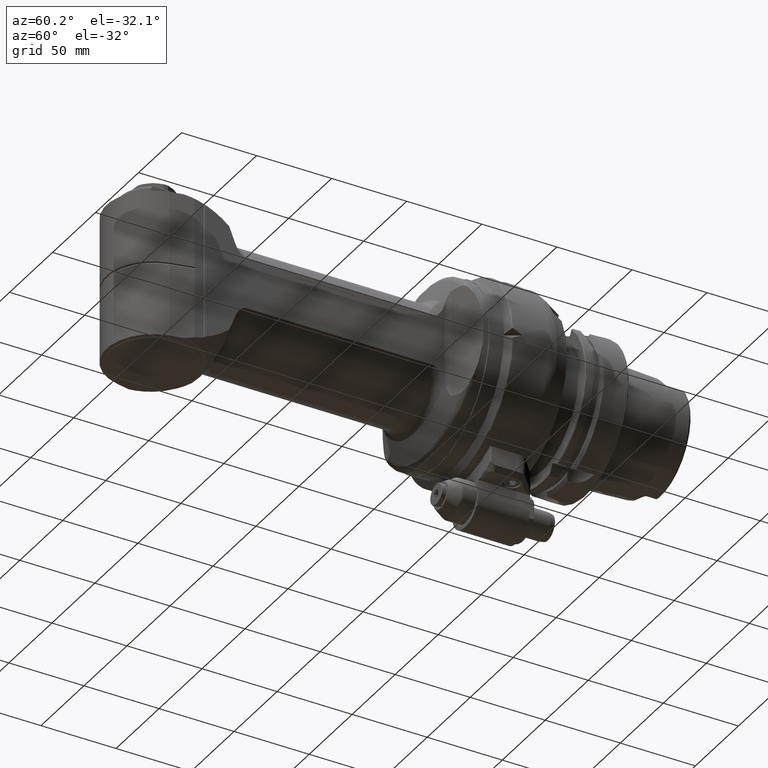
[diagram: clean part render]
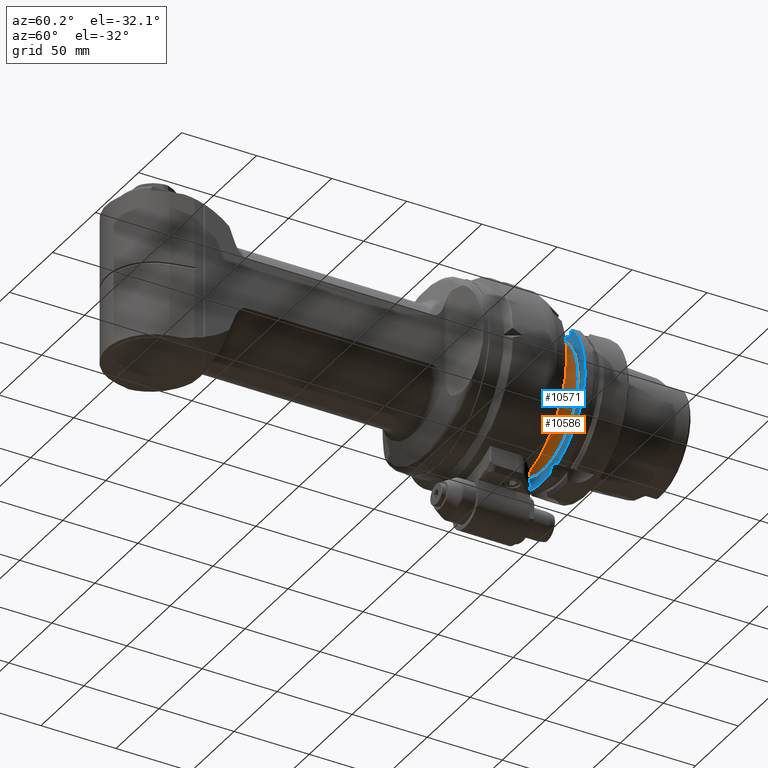
[diagram: same view with the hole feature highlighted: cylindrical wall and planar end face, labeled with their STEP entity ids]
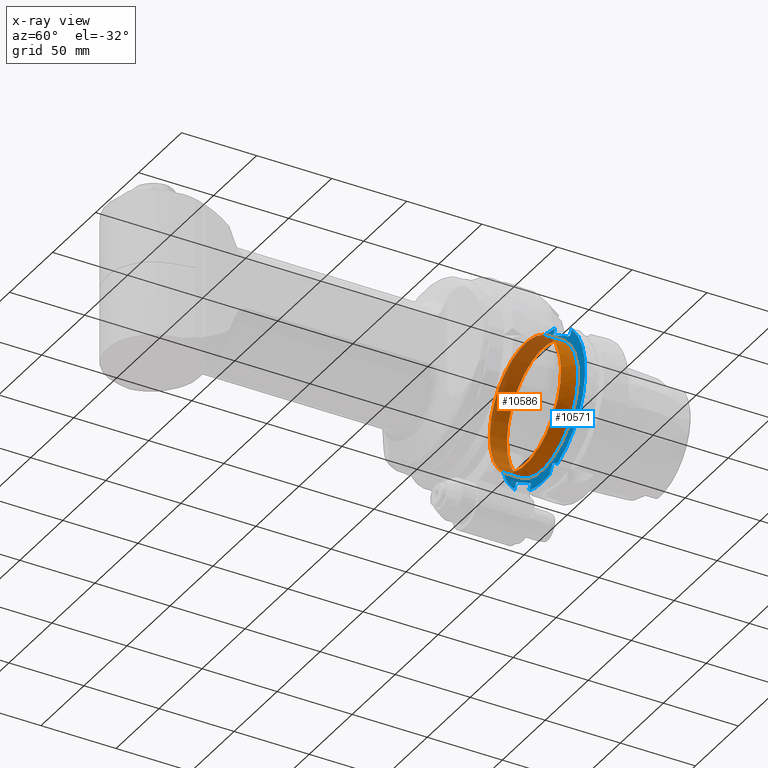
[diagram: x-ray of the same camera — body ghosted, the hole faces saturated]
A machine part, auxiliary view. The highlighted faces form one hole feature of diameter 83 mm: the cylindrical wall (entity #10586, orange) and its adjacent planar end face (entity #10571, blue) — they share a circular edge in the B-rep.
The next image is the same camera in x-ray (body ghosted, the hole faces saturated) — the bore reads through the body.
Wall:
#474=CYLINDRICAL_SURFACE('',#11590,41.5);
#996=CIRCLE('',#11566,41.5);
#1006=CIRCLE('',#11591,41.5);
#1007=CIRCLE('',#11592,41.5);
#1600=FACE_OUTER_BOUND('',#2280,.T.);
#2280=EDGE_LOOP('',(#8598,#8599,#8600,#8601,#8602));
#3203=LINE('',#32179,#3870);
#3870=VECTOR('',#13875,41.5);
#4731=VERTEX_POINT('',#32134);
#4737=VERTEX_POINT('',#32175);
#4738=VERTEX_POINT('',#32176);
#6083=EDGE_CURVE('',#4731,#4731,#996,.T.);
#6101=EDGE_CURVE('',#4737,#4738,#1006,.T.);
#6102=EDGE_CURVE('',#4738,#4737,#1007,.T.);
#6103=EDGE_CURVE('',#4738,#4731,#3203,.T.);
#8598=ORIENTED_EDGE('',*,*,#6101,.F.);
#8599=ORIENTED_EDGE('',*,*,#6102,.F.);
#8600=ORIENTED_EDGE('',*,*,#6103,.T.);
#8601=ORIENTED_EDGE('',*,*,#6083,.F.);
#8602=ORIENTED_EDGE('',*,*,#6103,.F.);
#10586=ADVANCED_FACE('',(#1600),#474,.T.);
#11566=AXIS2_PLACEMENT_3D('',#32135,#13814,#13815);
#11590=AXIS2_PLACEMENT_3D('',#32174,#13869,#13870);
#11591=AXIS2_PLACEMENT_3D('',#32177,#13871,#13872);
#11592=AXIS2_PLACEMENT_3D('',#32178,#13873,#13874);
#13814=DIRECTION('center_axis',(-1.53664867371285E-13,1.,8.88939656489896E-14));
#13815=DIRECTION('ref_axis',(-0.866025403784429,-1.77524661637194E-13,0.500000000000017));
#13869=DIRECTION('center_axis',(1.53664867371285E-13,-1.,-8.88939656489896E-14));
#13870=DIRECTION('ref_axis',(0.866025403784429,1.77524661637194E-13,-0.500000000000017));
#13871=DIRECTION('center_axis',(1.53664867371285E-13,-1.,-8.88939656489896E-14));
#13872=DIRECTION('ref_axis',(-0.500000000000017,1.5199880952032E-16,-0.866025403784429));
#13873=DIRECTION('center_axis',(1.53664867371285E-13,-1.,-8.88939656489896E-14));
#13874=DIRECTION('ref_axis',(-0.500000000000017,1.5199880952032E-16,-0.866025403784429));
#13875=DIRECTION('',(-1.53664867371285E-13,1.,8.88939656489896E-14));
#32134=CARTESIAN_POINT('',(-35.9400542570549,59.4999997692226,20.7500000000013));
#32135=CARTESIAN_POINT('Origin',(-1.04853280603831E-12,59.49999976923,6.02211481207787E-13));
#32174=CARTESIAN_POINT('Origin',(-3.6117079169731E-15,52.69999976922,-2.26748520974844E-15));
#32175=CARTESIAN_POINT('',(20.7499999999998,47.9999997692252,35.9400542570505));
#32176=CARTESIAN_POINT('',(-35.9400542570531,47.9999997692126,20.7500000000003));
#32177=CARTESIAN_POINT('Origin',(7.18613168731129E-13,47.99999976922,-4.20069123755521E-13));
#32178=CARTESIAN_POINT('Origin',(7.18613168731129E-13,47.99999976922,-4.20069123755521E-13));
#32179=CARTESIAN_POINT('',(-35.9400542570538,52.6999997692126,20.7500000000007));
End face:
#642=FACE_BOUND('',#2265,.T.);
#909=CIRCLE('',#11396,49.5);
#994=CIRCLE('',#11563,49.5);
#995=CIRCLE('',#11565,49.5);
#996=CIRCLE('',#11566,41.5);
#1585=FACE_OUTER_BOUND('',#2264,.T.);
#2264=EDGE_LOOP('',(#8521,#8522,#8523,#8524,#8525,#8526,#8527,#8528,#8529,
#8530,#8531));
#2265=EDGE_LOOP('',(#8532));
#3092=LINE('',#31024,#3759);
#3108=LINE('',#31173,#3775);
#3112=LINE('',#31182,#3779);
#3113=LINE('',#31185,#3780);
#3123=LINE('',#31245,#3790);
#3189=LINE('',#32099,#3856);
#3194=LINE('',#32131,#3861);
#3195=LINE('',#32132,#3862);
#3759=VECTOR('',#13376,6.683766390115);
#3775=VECTOR('',#13410,4.479377058704);
#3779=VECTOR('',#13420,20.);
#3780=VECTOR('',#13423,4.479377058704);
#3790=VECTOR('',#13439,4.262304130657);
#3856=VECTOR('',#13791,6.683766390117);
#3861=VECTOR('',#13810,4.262304130658);
#3862=VECTOR('',#13811,22.);
#4549=VERTEX_POINT('',#31000);
#4550=VERTEX_POINT('',#31002);
#4555=VERTEX_POINT('',#31022);
#4583=VERTEX_POINT('',#31172);
#4585=VERTEX_POINT('',#31180);
#4586=VERTEX_POINT('',#31184);
#4600=VERTEX_POINT('',#31233);
#4601=VERTEX_POINT('',#31244);
#4723=VERTEX_POINT('',#32097);
#4729=VERTEX_POINT('',#32117);
#4730=VERTEX_POINT('',#32130);
#4731=VERTEX_POINT('',#32134);
#5817=EDGE_CURVE('',#4550,#4549,#909,.T.);
#5823=EDGE_CURVE('',#4549,#4555,#3092,.T.);
#5855=EDGE_CURVE('',#4550,#4583,#3108,.T.);
#5860=EDGE_CURVE('',#4583,#4585,#3112,.T.);
#5861=EDGE_CURVE('',#4585,#4586,#3113,.T.);
#5878=EDGE_CURVE('',#4600,#4601,#3123,.T.);
#6069=EDGE_CURVE('',#4555,#4723,#3189,.T.);
#6078=EDGE_CURVE('',#4723,#4729,#994,.T.);
#6080=EDGE_CURVE('',#4730,#4729,#3194,.T.);
#6081=EDGE_CURVE('',#4730,#4601,#3195,.T.);
#6082=EDGE_CURVE('',#4600,#4586,#995,.T.);
#6083=EDGE_CURVE('',#4731,#4731,#996,.T.);
#8521=ORIENTED_EDGE('',*,*,#6078,.T.);
#8522=ORIENTED_EDGE('',*,*,#6080,.F.);
#8523=ORIENTED_EDGE('',*,*,#6081,.T.);
#8524=ORIENTED_EDGE('',*,*,#5878,.F.);
#8525=ORIENTED_EDGE('',*,*,#6082,.T.);
#8526=ORIENTED_EDGE('',*,*,#5861,.F.);
#8527=ORIENTED_EDGE('',*,*,#5860,.F.);
#8528=ORIENTED_EDGE('',*,*,#5855,.F.);
#8529=ORIENTED_EDGE('',*,*,#5817,.T.);
#8530=ORIENTED_EDGE('',*,*,#5823,.T.);
#8531=ORIENTED_EDGE('',*,*,#6069,.T.);
#8532=ORIENTED_EDGE('',*,*,#6083,.T.);
#10121=PLANE('',#11564);
#10571=ADVANCED_FACE('',(#1585,#642),#10121,.T.);
#11396=AXIS2_PLACEMENT_3D('',#31003,#13367,#13368);
#11563=AXIS2_PLACEMENT_3D('',#32118,#13806,#13807);
#11564=AXIS2_PLACEMENT_3D('',#32129,#13808,#13809);
#11565=AXIS2_PLACEMENT_3D('',#32133,#13812,#13813);
#11566=AXIS2_PLACEMENT_3D('',#32135,#13814,#13815);
#13367=DIRECTION('center_axis',(-1.54009162449779E-13,-1.,8.87417182908664E-14));
#13368=DIRECTION('ref_axis',(-0.314736050333509,-3.5759560703552E-14,-0.949179234191553));
#13376=DIRECTION('',(0.50000000544696,7.10887321326009E-16,0.866025400639635));
#13410=DIRECTION('',(0.500000000000017,-3.27509858972039E-15,0.866025403784429));
#13420=DIRECTION('',(-0.866025403784429,1.77746706242506E-13,0.500000000000017));
#13423=DIRECTION('',(-0.500000000000017,3.27509858972039E-15,-0.866025403784429));
#13439=DIRECTION('',(-0.500000000000017,-4.89466920379611E-16,-0.866025403784429));
#13791=DIRECTION('',(0.86602540692934,-1.77746708478056E-13,-0.499999994552871));
#13806=DIRECTION('center_axis',(-1.54009162449779E-13,-1.,8.87417182908664E-14));
#13807=DIRECTION('ref_axis',(0.349860838940893,-1.37015165831382E-13,-0.936801683055477));
#13808=DIRECTION('center_axis',(-1.54009162449779E-13,-1.,8.87417182908664E-14));
#13809=DIRECTION('ref_axis',(-0.866025403784429,1.77746706242506E-13,0.500000000000017));
#13810=DIRECTION('',(0.499999999999934,-1.17757211310348E-15,0.866025403784476));
#13811=DIRECTION('',(-0.866025403784429,1.77746706242506E-13,0.500000000000017));
#13812=DIRECTION('center_axis',(-1.54009162449779E-13,-1.,8.87417182908664E-14));
#13813=DIRECTION('ref_axis',(0.295047931791955,3.93510698160556E-14,0.955482452976134));
#13814=DIRECTION('center_axis',(-1.53664867371285E-13,1.,8.88939656489896E-14));
#13815=DIRECTION('ref_axis',(-0.866025403784429,-1.77524661637194E-13,0.500000000000017));
#31000=CARTESIAN_POINT('',(8.18791704673873,59.4999997656857,-48.8181115416135));
#31002=CARTESIAN_POINT('',(-15.5794344915016,59.4999997692255,-46.9843720924804));
#31003=CARTESIAN_POINT('Origin',(4.55845898494106E-12,59.49999976923,-2.63498673865832E-12));
#31022=CARTESIAN_POINT('',(11.5298002192053,59.4999997692256,-43.029800219207));
#31024=CARTESIAN_POINT('',(8.18791698773746,59.499999769218,-48.8181116849915));
#31172=CARTESIAN_POINT('',(-13.3397459621515,59.4999997692239,-43.105117766517));
#31173=CARTESIAN_POINT('',(-15.5794344915016,59.4999997692255,-46.9843720924804));
#31180=CARTESIAN_POINT('',(-30.6602540378401,59.4999997692274,-33.1051177665167));
#31182=CARTESIAN_POINT('',(-13.3397459621515,59.4999997692239,-43.105117766517));
#31184=CARTESIAN_POINT('',(-32.8999425671902,59.499999769229,-36.9843720924801));
#31185=CARTESIAN_POINT('',(-30.6602540378401,59.4999997692274,-33.1051177665167));
#31233=CARTESIAN_POINT('',(14.604872623707,59.4999997692248,47.29638142232));
#31244=CARTESIAN_POINT('',(12.473720558377,59.4999997692263,43.6051177665131));
#31245=CARTESIAN_POINT('',(14.604872623707,59.4999997692248,47.29638142232));
#32097=CARTESIAN_POINT('',(17.3181116082622,59.4999997668437,-46.3716832844525));
#32099=CARTESIAN_POINT('',(11.5298002192053,59.4999997692256,-43.029800219207));
#32117=CARTESIAN_POINT('',(33.6574315069645,59.4999997692209,36.2963814223196));
#32118=CARTESIAN_POINT('Origin',(4.55845898494106E-12,59.49999976923,-2.63498673865832E-12));
#32129=CARTESIAN_POINT('Origin',(-38.2133709419834,59.4999997692378,22.0624999999981));
#32130=CARTESIAN_POINT('',(31.5262794416344,59.4999997692224,32.6051177665127));
#32131=CARTESIAN_POINT('',(31.5262794416344,59.4999997692224,32.6051177665127));
#32132=CARTESIAN_POINT('',(31.5262794416344,59.4999997692224,32.6051177665127));
#32133=CARTESIAN_POINT('Origin',(4.55845898494106E-12,59.49999976923,-2.63498673865832E-12));
#32134=CARTESIAN_POINT('',(-35.9400542570549,59.4999997692226,20.7500000000013));
#32135=CARTESIAN_POINT('Origin',(-1.04853280603831E-12,59.49999976923,6.02211481207787E-13));